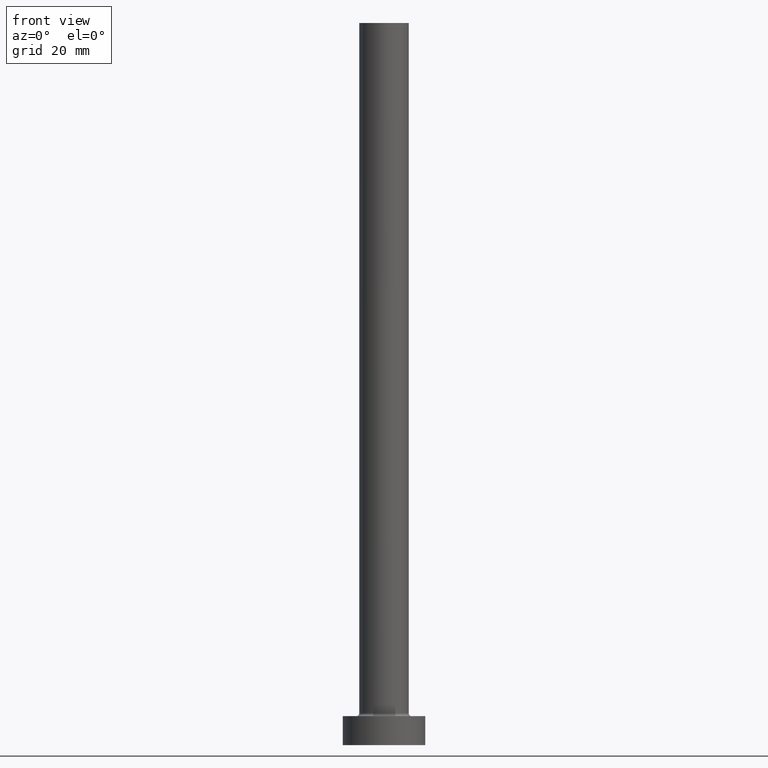
[diagram: clean part render]
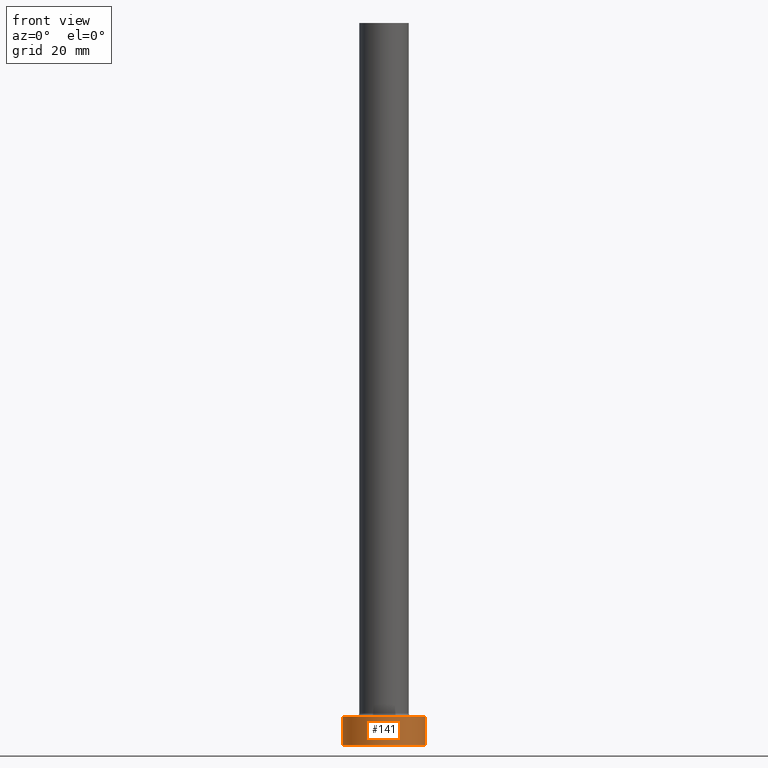
[diagram: same view with one face highlighted and labeled with its STEP entity id]
A machine part, front view. The second image highlights one B-rep face of the part: STEP entity #141.
In plain terms, the highlighted cylindrical surface (partial cylindrical patch) has radius 10 mm, axis along (-0, -0, -1).
Its self-contained STEP definition (entity closure, byte-faithful):
#6 = VECTOR ( 'NONE', #369, 1000.000000000000000 ) ;
#36 = ORIENTED_EDGE ( 'NONE', *, *, #335, .T. ) ;
#42 = CIRCLE ( 'NONE', #289, 10.00000000000000000 ) ;
#46 = DIRECTION ( 'NONE',  ( 0.000000000000000000, 0.000000000000000000, 1.000000000000000000 ) ) ;
#67 = ORIENTED_EDGE ( 'NONE', *, *, #171, .T. ) ;
#81 = DIRECTION ( 'NONE',  ( 1.000000000000000000, 0.000000000000000000, 0.000000000000000000 ) ) ;
#87 = LINE ( 'NONE', #91, #122 ) ;
#89 = AXIS2_PLACEMENT_3D ( 'NONE', #149, #46, #159 ) ;
#91 = CARTESIAN_POINT ( 'NONE',  ( -10.00000000000000000, 0.000000000000000000, 7.000000000000000000 ) ) ;
#93 = CARTESIAN_POINT ( 'NONE',  ( 10.00000000000000000, 1.224646799147353256E-15, 7.000000000000000000 ) ) ;
#111 = CIRCLE ( 'NONE', #89, 10.00000000000000000 ) ;
#122 = VECTOR ( 'NONE', #229, 1000.000000000000000 ) ;
#123 = CARTESIAN_POINT ( 'NONE',  ( 0.000000000000000000, 0.000000000000000000, 0.000000000000000000 ) ) ;
#141 = ADVANCED_FACE ( 'NONE', ( #419 ), #184, .T. ) ;
#149 = CARTESIAN_POINT ( 'NONE',  ( 0.000000000000000000, 0.000000000000000000, 7.000000000000000000 ) ) ;
#156 = DIRECTION ( 'NONE',  ( -0.000000000000000000, -0.000000000000000000, -1.000000000000000000 ) ) ;
#159 = DIRECTION ( 'NONE',  ( 1.000000000000000000, 0.000000000000000000, 0.000000000000000000 ) ) ;
#171 = EDGE_CURVE ( 'NONE', #226, #274, #87, .T. ) ;
#184 = CYLINDRICAL_SURFACE ( 'NONE', #451, 10.00000000000000000 ) ;
#187 = DIRECTION ( 'NONE',  ( 0.000000000000000000, 0.000000000000000000, 1.000000000000000000 ) ) ;
#193 = DIRECTION ( 'NONE',  ( -1.000000000000000000, 0.000000000000000000, 0.000000000000000000 ) ) ;
#226 = VERTEX_POINT ( 'NONE', #414 ) ;
#229 = DIRECTION ( 'NONE',  ( -0.000000000000000000, -0.000000000000000000, -1.000000000000000000 ) ) ;
#259 = CARTESIAN_POINT ( 'NONE',  ( 10.00000000000000000, 1.224646799147353256E-15, 0.000000000000000000 ) ) ;
#269 = CARTESIAN_POINT ( 'NONE',  ( 10.00000000000000000, 1.224646799147353256E-15, 7.000000000000000000 ) ) ;
#274 = VERTEX_POINT ( 'NONE', #347 ) ;
#289 = AXIS2_PLACEMENT_3D ( 'NONE', #123, #187, #81 ) ;
#290 = EDGE_LOOP ( 'NONE', ( #461, #310, #67, #36 ) ) ;
#295 = CARTESIAN_POINT ( 'NONE',  ( 0.000000000000000000, 0.000000000000000000, 7.000000000000000000 ) ) ;
#310 = ORIENTED_EDGE ( 'NONE', *, *, #411, .F. ) ;
#335 = EDGE_CURVE ( 'NONE', #274, #390, #42, .T. ) ;
#347 = CARTESIAN_POINT ( 'NONE',  ( -10.00000000000000000, 0.000000000000000000, 0.000000000000000000 ) ) ;
#348 = VERTEX_POINT ( 'NONE', #269 ) ;
#365 = EDGE_CURVE ( 'NONE', #348, #390, #367, .T. ) ;
#367 = LINE ( 'NONE', #93, #6 ) ;
#369 = DIRECTION ( 'NONE',  ( -0.000000000000000000, -0.000000000000000000, -1.000000000000000000 ) ) ;
#390 = VERTEX_POINT ( 'NONE', #259 ) ;
#411 = EDGE_CURVE ( 'NONE', #226, #348, #111, .T. ) ;
#414 = CARTESIAN_POINT ( 'NONE',  ( -10.00000000000000000, 0.000000000000000000, 7.000000000000000000 ) ) ;
#419 = FACE_OUTER_BOUND ( 'NONE', #290, .T. ) ;
#451 = AXIS2_PLACEMENT_3D ( 'NONE', #295, #156, #193 ) ;
#461 = ORIENTED_EDGE ( 'NONE', *, *, #365, .F. ) ;